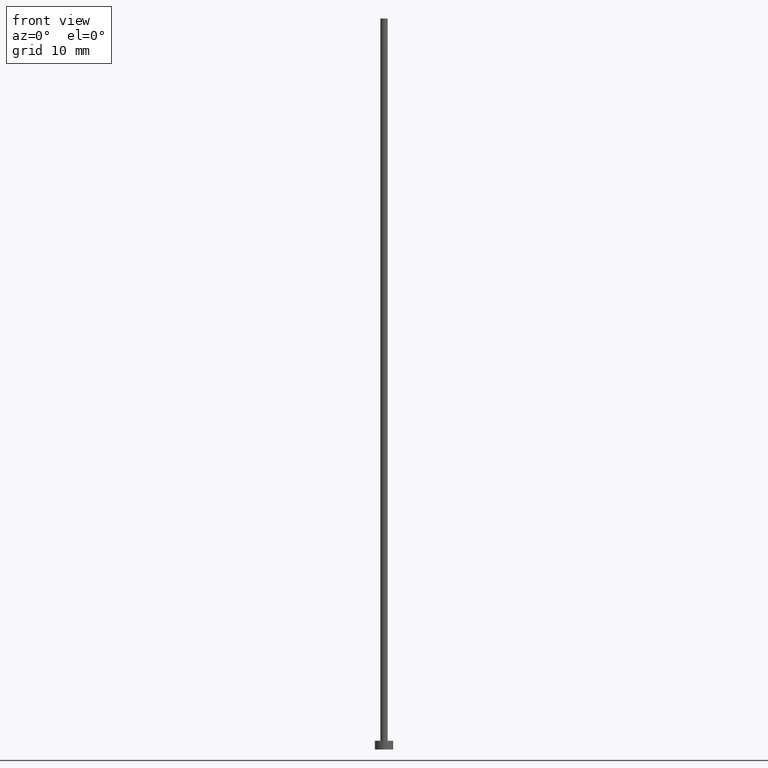
[diagram: clean part render]
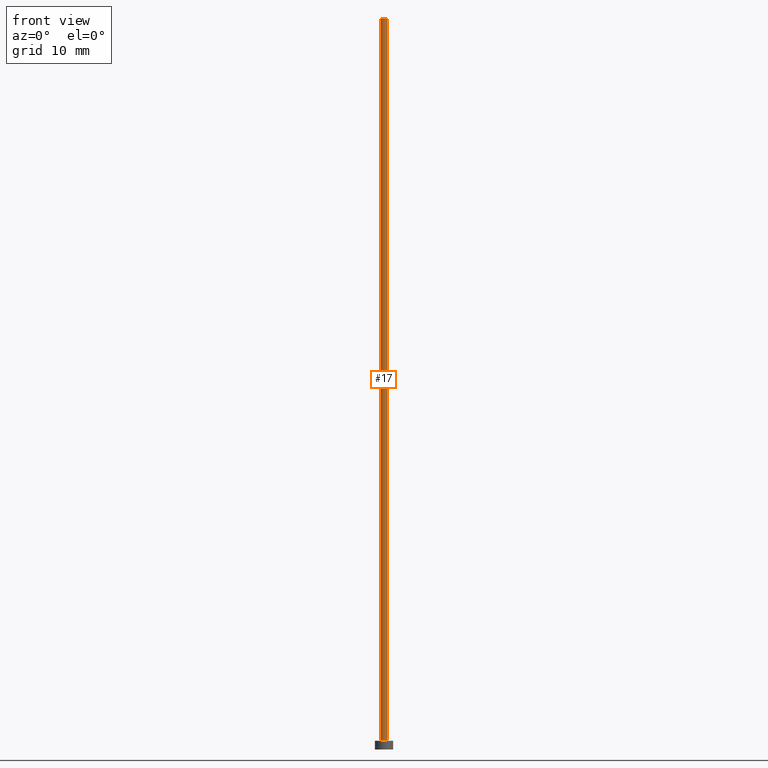
[diagram: same view with one face highlighted and labeled with its STEP entity id]
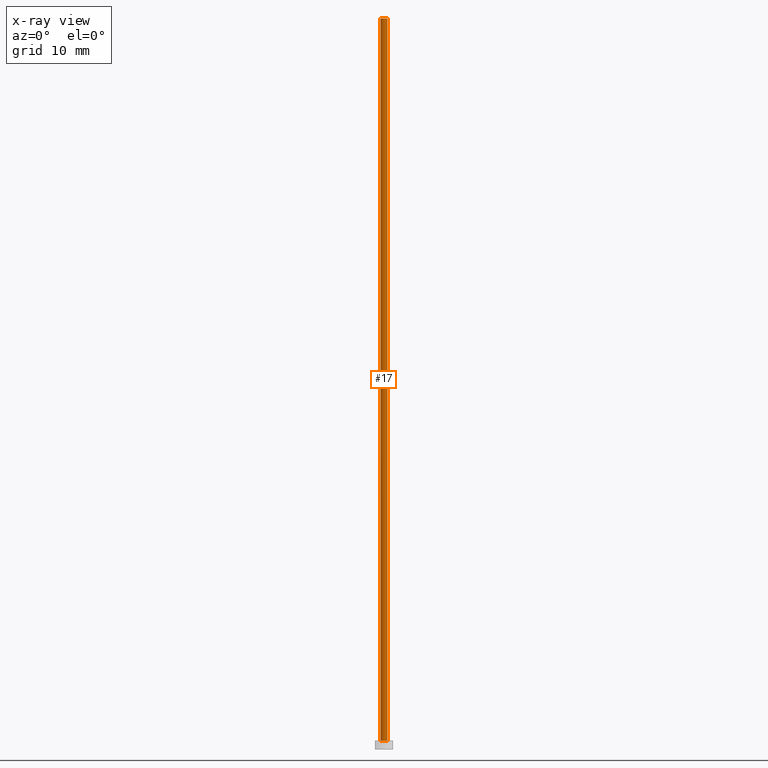
[diagram: x-ray of the same camera — body ghosted, the highlighted face saturated]
A machine part, front view. The second image highlights one B-rep face of the part: STEP entity #17.
The next image is the same camera in x-ray: the body ghosted, the highlighted face saturated — about 0% of this face is hidden behind the body in this view.
In plain terms, the highlighted cylindrical surface (edge-blend (fillet) strip) has radius 0.5 mm, axis along (-0, -0, -1).
Its self-contained STEP definition (entity closure, byte-faithful):
#1 = VERTEX_POINT ( 'NONE', #65 ) ;
#12 = ORIENTED_EDGE ( 'NONE', *, *, #212, .F. ) ;
#13 = VECTOR ( 'NONE', #164, 1000.000000000000000 ) ;
#16 = VERTEX_POINT ( 'NONE', #251 ) ;
#17 = ADVANCED_FACE ( 'NONE', ( #61 ), #236, .T. ) ;
#24 = DIRECTION ( 'NONE',  ( 1.000000000000000000, 0.000000000000000000, 0.000000000000000000 ) ) ;
#25 = LINE ( 'NONE', #87, #119 ) ;
#34 = AXIS2_PLACEMENT_3D ( 'NONE', #102, #218, #235 ) ;
#38 = CIRCLE ( 'NONE', #129, 0.5000000000000000000 ) ;
#42 = CARTESIAN_POINT ( 'NONE',  ( 0.000000000000000000, 0.000000000000000000, 100.0000000000000000 ) ) ;
#43 = ORIENTED_EDGE ( 'NONE', *, *, #143, .T. ) ;
#60 = EDGE_CURVE ( 'NONE', #219, #255, #144, .T. ) ;
#61 = FACE_OUTER_BOUND ( 'NONE', #170, .T. ) ;
#65 = CARTESIAN_POINT ( 'NONE',  ( 0.5000000000000000000, 6.123233995736766036E-17, 1.199999999999999956 ) ) ;
#71 = LINE ( 'NONE', #202, #13 ) ;
#87 = CARTESIAN_POINT ( 'NONE',  ( 0.5000000000000000000, 6.123233995736766036E-17, 100.0000000000000000 ) ) ;
#99 = EDGE_CURVE ( 'NONE', #16, #1, #38, .T. ) ;
#102 = CARTESIAN_POINT ( 'NONE',  ( 0.000000000000000000, 0.000000000000000000, 100.0000000000000000 ) ) ;
#113 = DIRECTION ( 'NONE',  ( 1.000000000000000000, 0.000000000000000000, 0.000000000000000000 ) ) ;
#115 = AXIS2_PLACEMENT_3D ( 'NONE', #42, #223, #113 ) ;
#119 = VECTOR ( 'NONE', #222, 1000.000000000000000 ) ;
#123 = CARTESIAN_POINT ( 'NONE',  ( -0.5000000000000000000, 0.000000000000000000, 100.0000000000000000 ) ) ;
#124 = CARTESIAN_POINT ( 'NONE',  ( 0.000000000000000000, 0.000000000000000000, 1.199999999999999956 ) ) ;
#129 = AXIS2_PLACEMENT_3D ( 'NONE', #124, #240, #24 ) ;
#143 = EDGE_CURVE ( 'NONE', #219, #16, #71, .T. ) ;
#144 = CIRCLE ( 'NONE', #115, 0.5000000000000000000 ) ;
#162 = CARTESIAN_POINT ( 'NONE',  ( 0.5000000000000000000, 6.123233995736766036E-17, 100.0000000000000000 ) ) ;
#164 = DIRECTION ( 'NONE',  ( -0.000000000000000000, -0.000000000000000000, -1.000000000000000000 ) ) ;
#170 = EDGE_LOOP ( 'NONE', ( #12, #211, #43, #175 ) ) ;
#175 = ORIENTED_EDGE ( 'NONE', *, *, #99, .T. ) ;
#202 = CARTESIAN_POINT ( 'NONE',  ( -0.5000000000000000000, 0.000000000000000000, 100.0000000000000000 ) ) ;
#211 = ORIENTED_EDGE ( 'NONE', *, *, #60, .F. ) ;
#212 = EDGE_CURVE ( 'NONE', #255, #1, #25, .T. ) ;
#218 = DIRECTION ( 'NONE',  ( -0.000000000000000000, -0.000000000000000000, -1.000000000000000000 ) ) ;
#219 = VERTEX_POINT ( 'NONE', #123 ) ;
#222 = DIRECTION ( 'NONE',  ( -0.000000000000000000, -0.000000000000000000, -1.000000000000000000 ) ) ;
#223 = DIRECTION ( 'NONE',  ( 0.000000000000000000, 0.000000000000000000, 1.000000000000000000 ) ) ;
#235 = DIRECTION ( 'NONE',  ( -1.000000000000000000, 0.000000000000000000, 0.000000000000000000 ) ) ;
#236 = CYLINDRICAL_SURFACE ( 'NONE', #34, 0.5000000000000000000 ) ;
#240 = DIRECTION ( 'NONE',  ( 0.000000000000000000, 0.000000000000000000, 1.000000000000000000 ) ) ;
#251 = CARTESIAN_POINT ( 'NONE',  ( -0.5000000000000000000, 0.000000000000000000, 1.199999999999999956 ) ) ;
#255 = VERTEX_POINT ( 'NONE', #162 ) ;